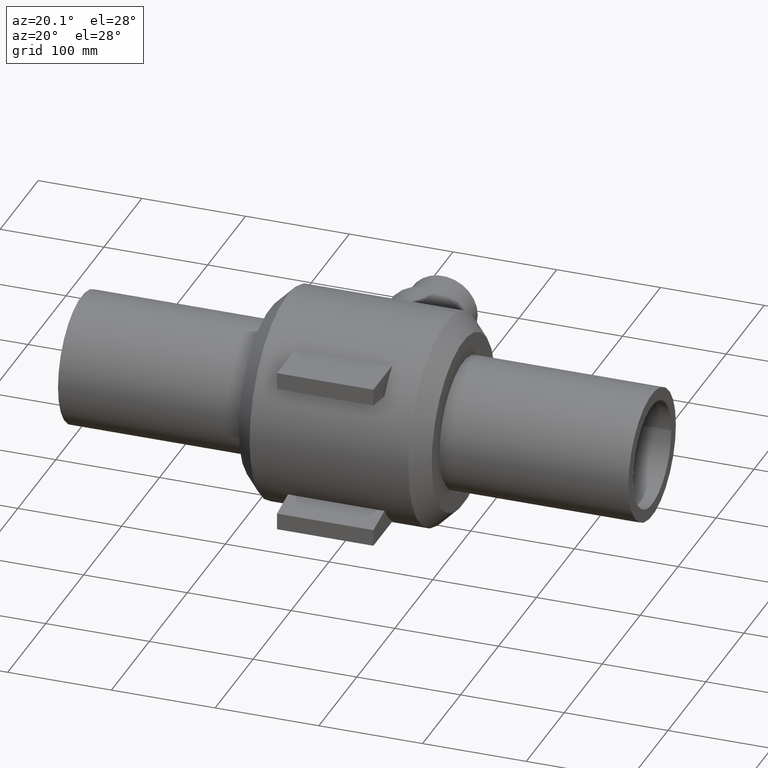
[diagram: clean part render]
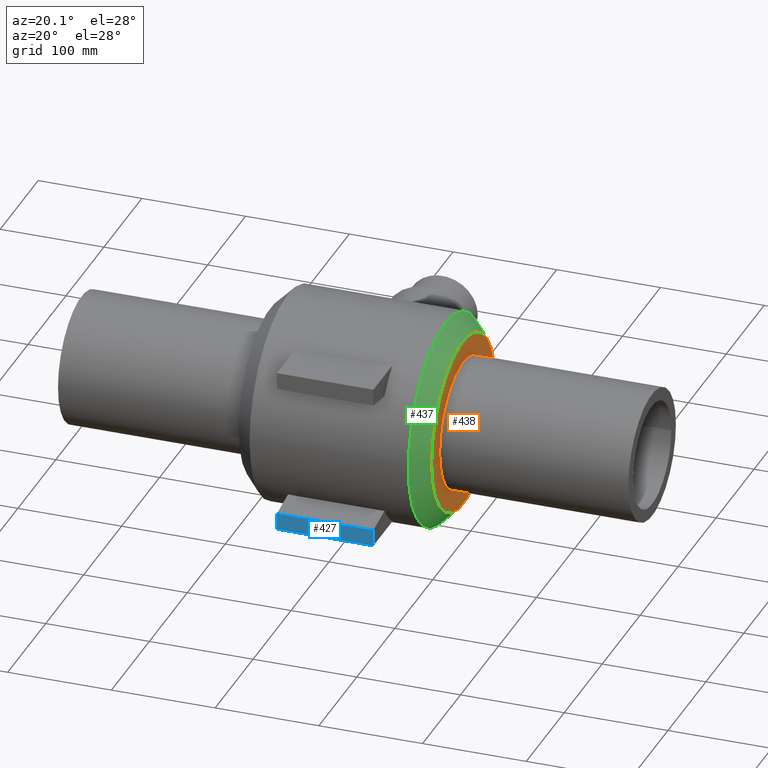
[diagram: same view with three faces highlighted in distinct colors, each labeled with its STEP entity id]
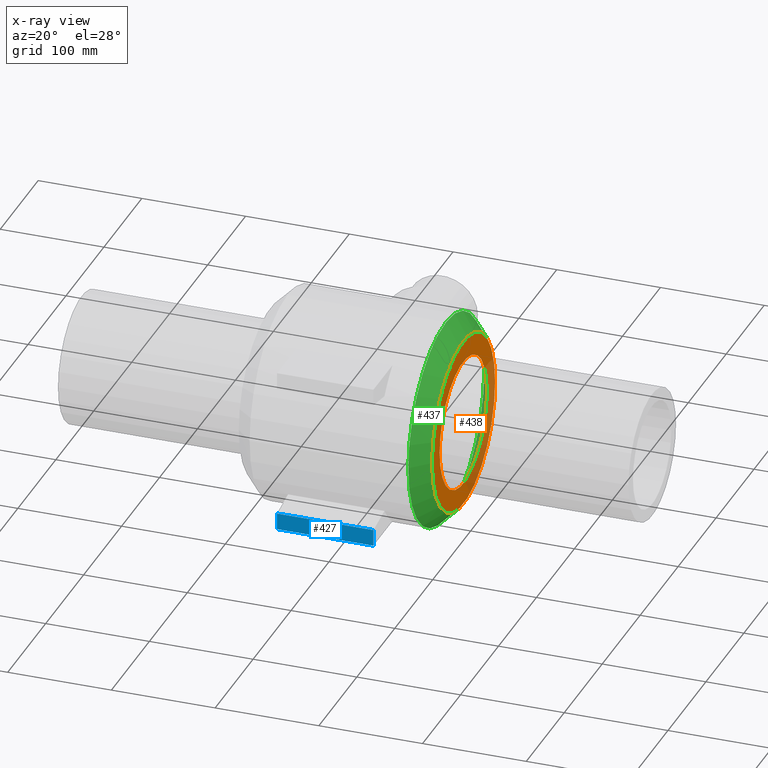
[diagram: x-ray of the same camera — body ghosted, the three highlighted faces saturated]
A machine part, auxiliary view with three faces highlighted in distinct colors.
The next image is the same camera in x-ray (body ghosted, the three faces saturated) — at least one of them is partly hidden behind the body in this view.
Their STEP definitions:

[orange] entity #438 — the highlighted planar face has unit normal (1, 0, 0).
#31=PLANE('',#491);
#94=FACE_BOUND('',#186,.T.);
#137=FACE_OUTER_BOUND('',#185,.T.);
#185=EDGE_LOOP('',(#396));
#186=EDGE_LOOP('',(#397));
#221=CIRCLE('',#490,83.5);
#222=CIRCLE('',#492,62.5);
#260=VERTEX_POINT('',#913);
#261=VERTEX_POINT('',#916);
#308=EDGE_CURVE('',#260,#260,#221,.T.);
#309=EDGE_CURVE('',#261,#261,#222,.T.);
#396=ORIENTED_EDGE('',*,*,#308,.T.);
#397=ORIENTED_EDGE('',*,*,#309,.F.);
#438=ADVANCED_FACE('',(#137,#94),#31,.T.);
#490=AXIS2_PLACEMENT_3D('',#914,#612,#613);
#491=AXIS2_PLACEMENT_3D('',#915,#614,#615);
#492=AXIS2_PLACEMENT_3D('',#917,#616,#617);
#612=DIRECTION('center_axis',(1.,0.,0.));
#613=DIRECTION('ref_axis',(0.,0.,-1.));
#614=DIRECTION('center_axis',(1.,0.,0.));
#615=DIRECTION('ref_axis',(0.,0.,-1.));
#616=DIRECTION('center_axis',(1.,0.,0.));
#617=DIRECTION('ref_axis',(0.,0.,-1.));
#913=CARTESIAN_POINT('',(93.,83.5,0.));
#914=CARTESIAN_POINT('Origin',(93.,0.,0.));
#915=CARTESIAN_POINT('Origin',(93.,62.5,0.));
#916=CARTESIAN_POINT('',(93.,62.5,0.));
#917=CARTESIAN_POINT('Origin',(93.,0.,0.));

[blue] entity #427 — the highlighted planar face has unit normal (0, 1, -0).
#22=PLANE('',#477);
#43=LINE('',#876,#63);
#45=LINE('',#880,#65);
#47=LINE('',#884,#67);
#48=LINE('',#885,#68);
#63=VECTOR('',#569,16.);
#65=VECTOR('',#573,93.);
#67=VECTOR('',#577,93.);
#68=VECTOR('',#578,16.);
#126=FACE_OUTER_BOUND('',#171,.T.);
#171=EDGE_LOOP('',(#358,#359,#360,#361));
#250=VERTEX_POINT('',#873);
#251=VERTEX_POINT('',#875);
#252=VERTEX_POINT('',#879);
#253=VERTEX_POINT('',#883);
#291=EDGE_CURVE('',#251,#250,#43,.T.);
#293=EDGE_CURVE('',#251,#252,#45,.T.);
#295=EDGE_CURVE('',#250,#253,#47,.T.);
#296=EDGE_CURVE('',#253,#252,#48,.T.);
#358=ORIENTED_EDGE('',*,*,#293,.F.);
#359=ORIENTED_EDGE('',*,*,#291,.T.);
#360=ORIENTED_EDGE('',*,*,#295,.T.);
#361=ORIENTED_EDGE('',*,*,#296,.T.);
#427=ADVANCED_FACE('',(#126),#22,.F.);
#477=AXIS2_PLACEMENT_3D('',#882,#575,#576);
#569=DIRECTION('',(0.,-2.22044604925031E-15,-1.));
#573=DIRECTION('',(1.,0.,0.));
#575=DIRECTION('center_axis',(0.,1.,-2.22044604925031E-15));
#576=DIRECTION('ref_axis',(0.,2.8421709430404E-15,1.));
#577=DIRECTION('',(1.,0.,0.));
#578=DIRECTION('',(0.,2.22044604925031E-15,1.));
#873=CARTESIAN_POINT('',(-46.5,-110.,-80.));
#875=CARTESIAN_POINT('',(-46.5,-110.,-64.));
#876=CARTESIAN_POINT('',(-46.5,-110.,-80.));
#879=CARTESIAN_POINT('',(46.5,-110.,-64.));
#880=CARTESIAN_POINT('',(0.,-110.,-64.));
#882=CARTESIAN_POINT('Origin',(0.,-110.,-80.));
#883=CARTESIAN_POINT('',(46.5,-110.,-80.));
#884=CARTESIAN_POINT('',(0.,-110.,-80.));
#885=CARTESIAN_POINT('',(46.5,-110.,-80.));

[green] entity #437 — the highlighted conical surface has half-angle 45 deg.
#37=CONICAL_SURFACE('',#489,91.75,45.);
#93=FACE_BOUND('',#184,.T.);
#136=FACE_OUTER_BOUND('',#183,.T.);
#183=EDGE_LOOP('',(#394));
#184=EDGE_LOOP('',(#395));
#206=CIRCLE('',#453,100.);
#221=CIRCLE('',#490,83.5);
#233=VERTEX_POINT('',#829);
#260=VERTEX_POINT('',#913);
#273=EDGE_CURVE('',#233,#233,#206,.T.);
#308=EDGE_CURVE('',#260,#260,#221,.T.);
#394=ORIENTED_EDGE('',*,*,#308,.F.);
#395=ORIENTED_EDGE('',*,*,#273,.T.);
#437=ADVANCED_FACE('',(#136,#93),#37,.T.);
#453=AXIS2_PLACEMENT_3D('',#830,#518,#519);
#489=AXIS2_PLACEMENT_3D('',#912,#610,#611);
#490=AXIS2_PLACEMENT_3D('',#914,#612,#613);
#518=DIRECTION('center_axis',(1.,0.,0.));
#519=DIRECTION('ref_axis',(0.,0.,-1.));
#610=DIRECTION('center_axis',(-1.,0.,0.));
#611=DIRECTION('ref_axis',(0.,1.,0.));
#612=DIRECTION('center_axis',(1.,0.,0.));
#613=DIRECTION('ref_axis',(0.,0.,-1.));
#829=CARTESIAN_POINT('',(76.5,100.,0.));
#830=CARTESIAN_POINT('Origin',(76.5,0.,0.));
#912=CARTESIAN_POINT('Origin',(84.75,0.,0.));
#913=CARTESIAN_POINT('',(93.,83.5,0.));
#914=CARTESIAN_POINT('Origin',(93.,0.,0.));